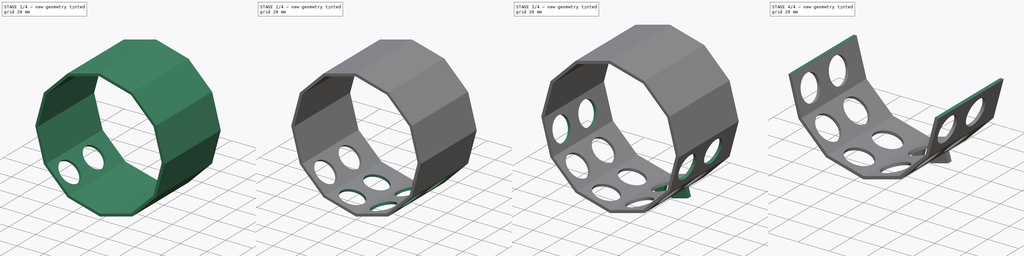
[diagram: build sequence overview — one tinted view per stage of 4, left to right]
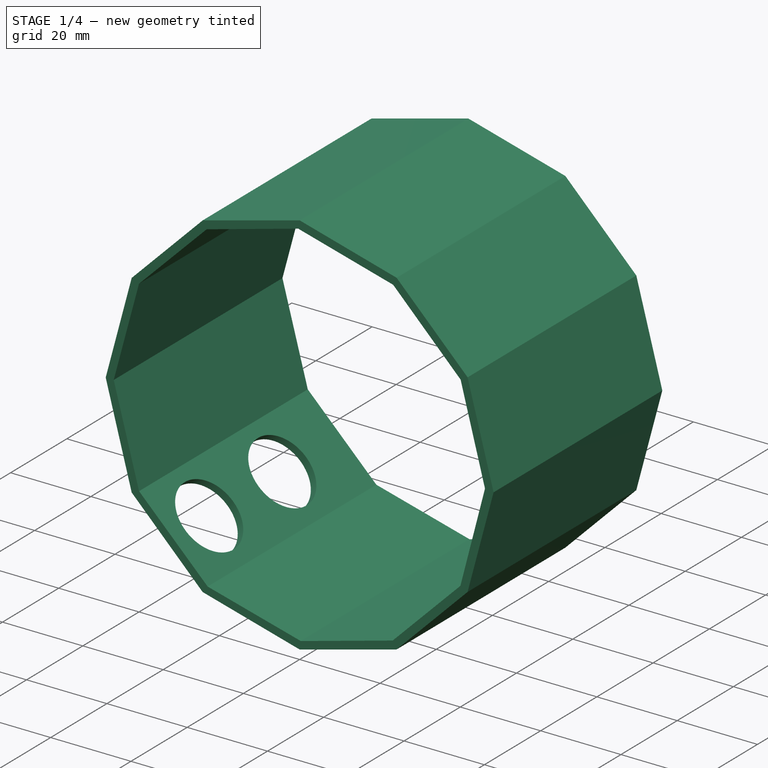
[diagram: stage 1 of 4 — iso view after this stage's code; geometry added in this stage tinted green]
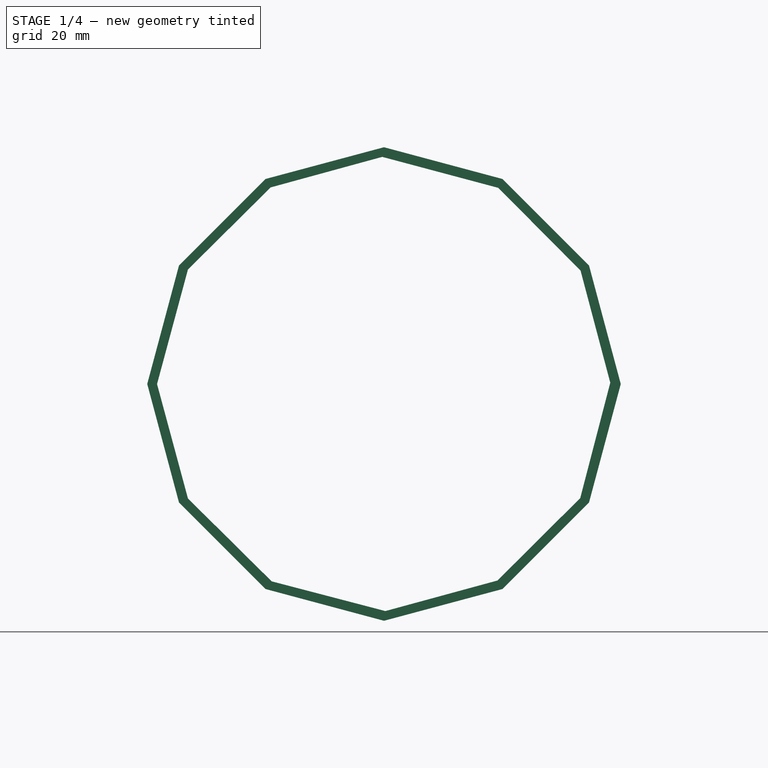
[diagram: stage 1 of 4 — front view after this stage's code; geometry added in this stage tinted green]
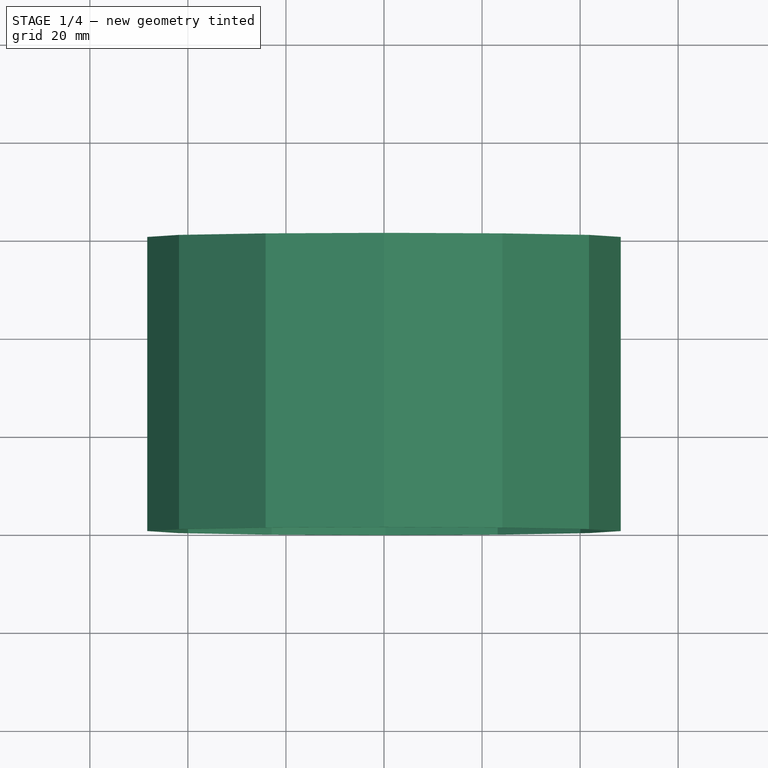
[diagram: stage 1 of 4 — top view after this stage's code; geometry added in this stage tinted green]
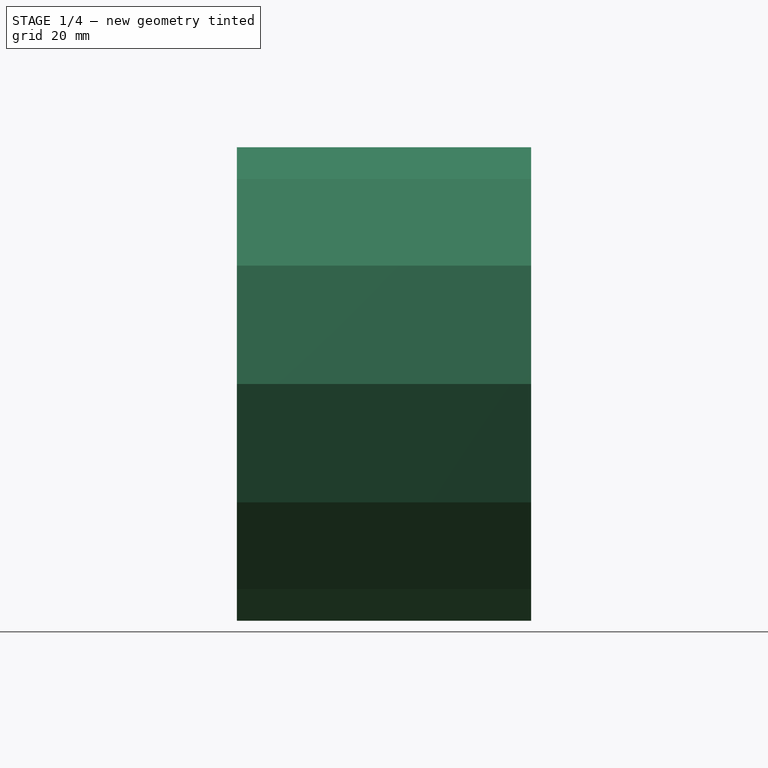
[diagram: stage 1 of 4 — right view after this stage's code; geometry added in this stage tinted green]
FCSTD DOCUMENT  (FreeCAD 0.18R4 (GitTag))
Label: collar_dani_ultrasonidos4
License: All rights reserved
LicenseURL: http://en.wikipedia.org/wiki/All_rights_reserved
objects: Sketcher::SketchObject×11, PartDesign::Pocket×8, PartDesign::Pad×3, Part::Box×1, PartDesign::Body×1, Part::Cut×1
note: 36 computed .brp shape members not serialized (recipe doc carries the construction recipe); baked Part::Feature solids carry a one-line shape summary decoded from their .brp

FEATURE [Sketcher::SketchObject] Sketch
  MapMode = 5
  Placement = pos=(0,0,0) rot=(1,0,0;1.5708rad)
  Support = -> [XZ_Plane]
  sketch-geometry (12):
    g0: LineSegment StartX=0 StartY=13.1373 StartZ=0 EndX=-24.1481 EndY=6.66682 EndZ=0
    g1: LineSegment StartX=-24.1481 StartY=6.66682 StartZ=0 EndX=-41.8258 EndY=-11.0109 EndZ=0
    g2: LineSegment StartX=-41.8258 StartY=-11.0109 StartZ=0 EndX=-48.2963 EndY=-35.159 EndZ=0
    g3: LineSegment StartX=-48.2963 StartY=-35.159 StartZ=0 EndX=-41.8258 EndY=-59.3071 EndZ=0
    g4: LineSegment StartX=-41.8258 StartY=-59.3071 StartZ=0 EndX=-24.1481 EndY=-76.9848 EndZ=0
    g5: LineSegment StartX=-24.1481 StartY=-76.9848 StartZ=0 EndX=0 EndY=-83.4553 EndZ=0
    g6: LineSegment StartX=0 StartY=-83.4553 StartZ=0 EndX=24.1481 EndY=-76.9848 EndZ=0
    g7: LineSegment StartX=24.1481 StartY=-76.9848 StartZ=0 EndX=41.8258 EndY=-59.3071 EndZ=0
    g8: LineSegment StartX=41.8258 StartY=-59.3071 StartZ=0 EndX=48.2963 EndY=-35.159 EndZ=0
    g9: LineSegment StartX=48.2963 StartY=-35.159 StartZ=0 EndX=41.8258 EndY=-11.0109 EndZ=0
    g10: LineSegment StartX=41.8258 StartY=-11.0109 StartZ=0 EndX=24.1481 EndY=6.66682 EndZ=0
    g11: LineSegment StartX=24.1481 StartY=6.66682 StartZ=0 EndX=0 EndY=13.1373 EndZ=0
  constraints (35):
    c: Coincident(g1,g2)
    c: Coincident(g2,g3)
    c: Coincident(g3,g4)
    c: Coincident(g4,g5)
    c: Coincident(g5,g6)
    c: Coincident(g6,g7)
    c: Coincident(g7,g8)
    c: Coincident(g8,g9)
    c: Coincident(g9,g10)
    c: Coincident(g10,g11)
    c: Angle(g10,g9) = 2.61799
    c: Angle(g9,g8) = 2.61799
    c: Angle(g8,g7) = 2.61799
    c: Angle(g7,g6) = 2.61799
    c: Angle(g6,g5) = 2.61799
    c: Angle(g5,g4) = 2.61799
    c: Angle(g4,g3) = 2.61799
    c: Angle(g3,g2) = 2.61799
    c: Angle(g2,g1) = 2.61799
    c: Angle(g1,g0) = 2.61799
    c: Coincident(g0,g11)
    c: Angle(g0,g11) = 2.61799
    c: Coincident(g0,g1)
    c: Distance(g0) = 25
    c: Distance(g11) = 25
    c: Distance(g10) = 25
    c: Distance(g9) = 25
    c: Distance(g8) = 25
    c: Distance(g7) = 25
    c: Distance(g6) = 25
    c: Distance(g5) = 25
    c: Distance(g4) = 25
    c: Distance(g3) = 25
    c: DistanceX(g0,g-1) = 0
    c: DistanceX(g-1,g5) = 0
FEATURE [PartDesign::Pad] Pad
  Length = 60
  Length2 = 100
  Placement = pos=(0,0,0) rot=(1,0,0;1.5708rad)
  Profile = -> Sketch
  Type = 0
FEATURE [Sketcher::SketchObject] Sketch001
  ExternalGeometry = -> [Pad]
  MapMode = 5
  Placement = pos=(0,-1e-16,0) rot=(-1,0,0;1.5708rad)
  Support = -> [Pad]
  sketch-geometry (12):
    g0: LineSegment StartX=0.278927 StartY=81.4748 StartZ=0 EndX=23.1697 EndY=75.2405 EndZ=0
    g1: LineSegment StartX=23.1697 StartY=75.2405 StartZ=0 EndX=40.0321 EndY=58.4226 EndZ=0
    g2: LineSegment StartX=40.0321 StartY=58.4226 StartZ=0 EndX=46.1551 EndY=34.8952 EndZ=0
    g3: LineSegment StartX=46.1551 StartY=34.8952 StartZ=0 EndX=40.0872 EndY=11.9995 EndZ=0
    g4: LineSegment StartX=40.0872 StartY=11.9995 StartZ=0 EndX=23.2934 EndY=-4.85868 EndZ=0
    g5: LineSegment StartX=23.2934 StartY=-4.85868 StartZ=0 EndX=-0.357735 EndY=-11.1695 EndZ=0
    g6: LineSegment StartX=-0.357735 StartY=-11.1695 StartZ=0 EndX=-23.1459 EndY=-4.93607 EndZ=0
    g7: LineSegment StartX=-23.1459 StartY=-4.93607 StartZ=0 EndX=-40.0017 EndY=11.8309 EndZ=0
    g8: LineSegment StartX=-40.0017 StartY=11.8309 StartZ=0 EndX=-46.2963 EndY=35.1693 EndZ=0
    g9: LineSegment StartX=-46.2963 StartY=35.1693 StartZ=0 EndX=-39.9901 EndY=58.5133 EndZ=0
    g10: LineSegment StartX=-39.9901 StartY=58.5133 StartZ=0 EndX=-22.91 EndY=75.4141 EndZ=0
    g11: LineSegment StartX=-22.91 StartY=75.4141 StartZ=0 EndX=0.278927 EndY=81.4748 EndZ=0
  constraints (24):
    c: Coincident(g0,g1)
    c: Coincident(g1,g2)
    c: Coincident(g2,g3)
    c: Coincident(g3,g4)
    c: Coincident(g4,g5)
    c: Coincident(g5,g6)
    c: Coincident(g6,g7)
    c: Coincident(g7,g8)
    c: Coincident(g8,g9)
    c: Coincident(g9,g10)
    c: Coincident(g10,g11)
    c: Coincident(g11,g0)
    c: Distance(g1,g-14) = 2
    c: Distance(g0,g-4) = 2
    c: Distance(g0,g-5) = 2
    c: Distance(g10,g-6) = 2
    c: Distance(g9,g-7) = 2
    c: Distance(g8,g-8) = 2
    c: Distance(g7,g-9) = 2
    c: Distance(g-10,g6) = 2
    c: Distance(g5,g-11) = 2
    c: Distance(g4,g-12) = 2
    c: Distance(g3,g-13) = 2
    c: Distance(g2,g-13) = 2
FEATURE [PartDesign::Pocket] Pocket
  BaseFeature = -> Pad
  Length = 60
  Length2 = 100
  Placement = pos=(0,0,0) rot=(1,0,0;1.5708rad)
  Profile = -> Sketch001
  Type = 0
FEATURE [Sketcher::SketchObject] Sketch002
  ExternalGeometry = -> [Pocket]
  MapMode = 5
  Placement = pos=(-50.5665,-3.34e-14,-50.5665) rot=(0.92388,0,-0.382683;3.14159rad)
  Support = -> [Pocket]
  sketch-geometry (2):
    g0: Circle CenterX=24.8612 CenterY=47 CenterZ=0 NormalX=0 NormalY=0 NormalZ=1 AngleXU=0 Radius=8.5
    g1: Circle CenterX=24.8612 CenterY=21 CenterZ=0 NormalX=0 NormalY=0 NormalZ=1 AngleXU=0 Radius=8.5
  constraints (6):
    c: Radius(g0) = 8.5
    c: Radius(g1) = 8.5
    c: DistanceY(g1,g0) = 26
    c: DistanceX(g1,g0) = 0
    c: Distance(g0,g-4) = 12.5
    c: Distance(g0,g-3) = 13
FEATURE [PartDesign::Pocket] Pocket001
  BaseFeature = -> Pocket
  Length = 5
  Length2 = 100
  Placement = pos=(0,0,0) rot=(1,0,0;1.5708rad)
  Profile = -> Sketch002
  Type = 0
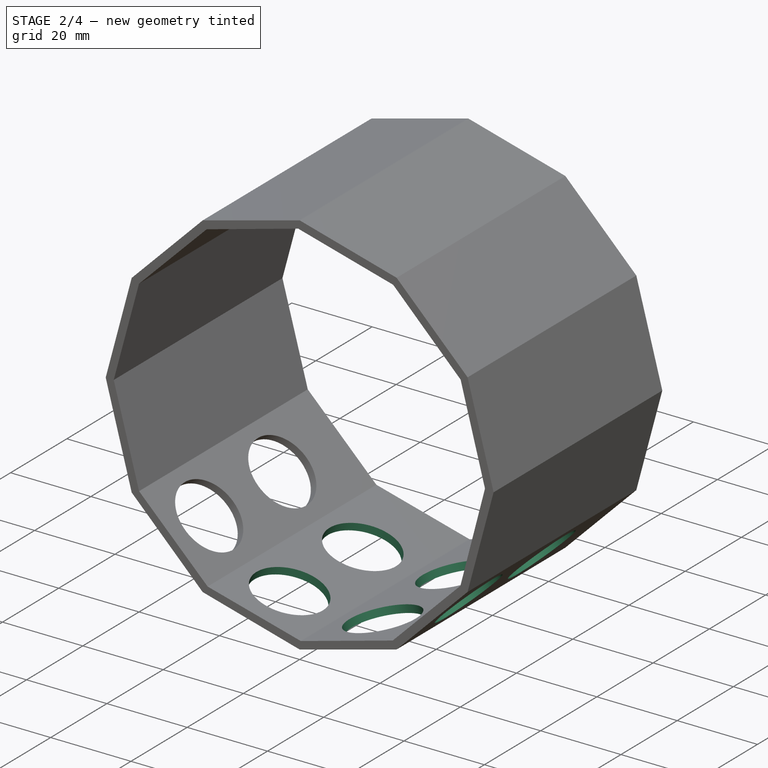
[diagram: stage 2 of 4 — iso view after this stage's code; geometry added in this stage tinted green]
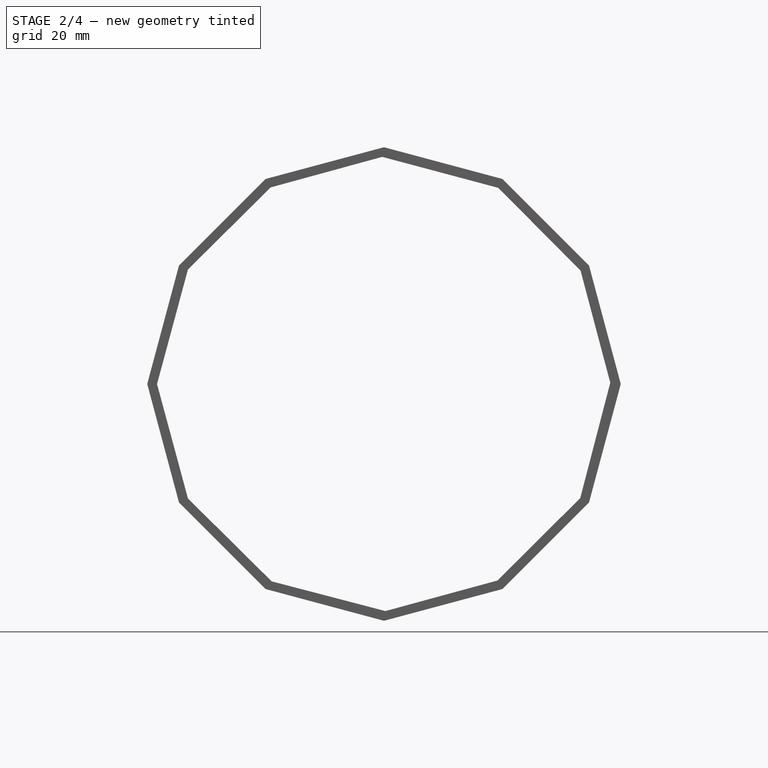
[diagram: stage 2 of 4 — front view after this stage's code; geometry added in this stage tinted green]
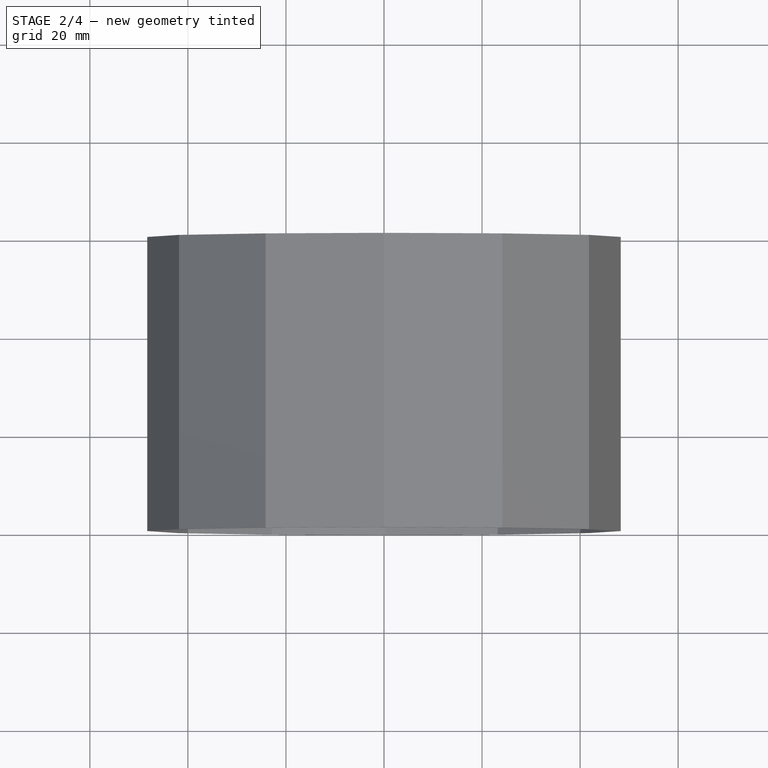
[diagram: stage 2 of 4 — top view after this stage's code; geometry added in this stage tinted green]
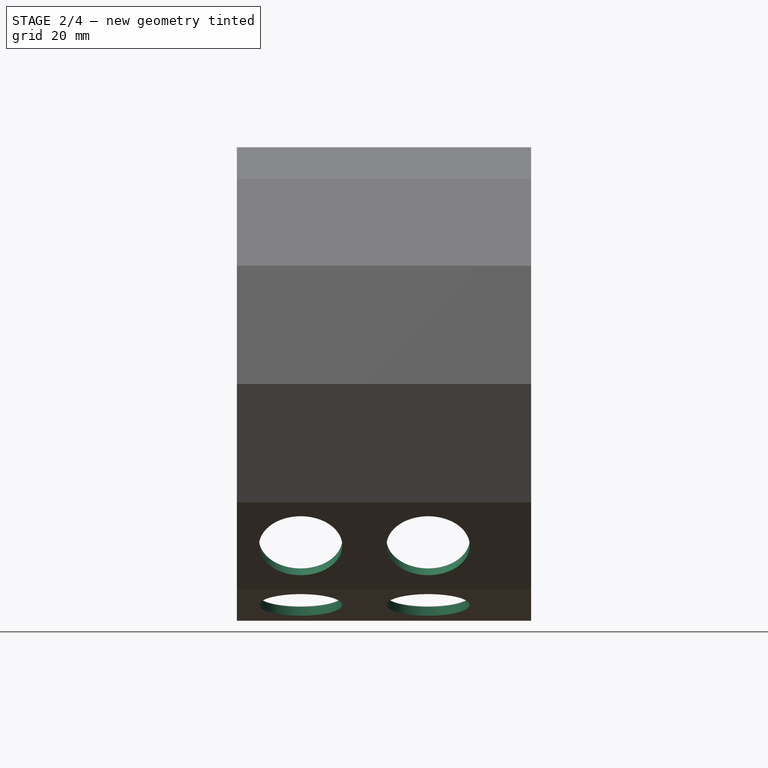
[diagram: stage 2 of 4 — right view after this stage's code; geometry added in this stage tinted green]
FEATURE [Sketcher::SketchObject] Sketch003
  ExternalGeometry = -> [Pocket001]
  MapMode = 5
  Placement = pos=(-20.8638,-6.06e-14,-77.8648) rot=(0.991445,0,-0.130526;3.14159rad)
  Support = -> [Pocket001]
  sketch-geometry (2):
    g0: Circle CenterX=9.09982 CenterY=47 CenterZ=0 NormalX=0 NormalY=0 NormalZ=1 AngleXU=0 Radius=8.5
    g1: Circle CenterX=9.09982 CenterY=21 CenterZ=0 NormalX=0 NormalY=0 NormalZ=1 AngleXU=0 Radius=8.5
  constraints (6):
    c: Radius(g0) = 8.5
    c: Radius(g1) = 8.5
    c: DistanceY(g1,g0) = 26
    c: DistanceX(g0,g1) = 0
    c: Distance(g0,g-3) = 13
    c: Distance(g0,g-4) = 12.5
FEATURE [PartDesign::Pocket] Pocket002
  BaseFeature = -> Pocket001
  Length = 5
  Length2 = 100
  Placement = pos=(0,0,0) rot=(1,0,0;1.5708rad)
  Profile = -> Sketch003
  Type = 0
FEATURE [Sketcher::SketchObject] Sketch004
  ExternalGeometry = -> [Pocket002]
  MapMode = 5
  Placement = pos=(20.8638,-6.92e-14,-77.8648) rot=(0.991445,0,0.130526;3.14159rad)
  Support = -> [Pocket002]
  sketch-geometry (2):
    g0: Circle CenterX=-9.09982 CenterY=47 CenterZ=0 NormalX=0 NormalY=0 NormalZ=1 AngleXU=0 Radius=8.5
    g1: Circle CenterX=-9.09982 CenterY=21 CenterZ=0 NormalX=0 NormalY=0 NormalZ=1 AngleXU=0 Radius=8.5
  constraints (6):
    c: Radius(g0) = 8.5
    c: Radius(g1) = 8.5
    c: DistanceY(g1,g0) = 26
    c: DistanceX(g0,g1) = 0
    c: Distance(g0,g-3) = 13
    c: Distance(g0,g-4) = 12.5
FEATURE [PartDesign::Pocket] Pocket003
  BaseFeature = -> Pocket002
  Length = 5
  Length2 = 100
  Placement = pos=(0,0,0) rot=(1,0,0;1.5708rad)
  Profile = -> Sketch004
  Type = 0
FEATURE [Sketcher::SketchObject] Sketch005
  ExternalGeometry = -> [Pocket003]
  MapMode = 5
  Placement = pos=(50.5665,-5.02e-14,-50.5665) rot=(0.92388,0,0.382683;3.14159rad)
  Support = -> [Pocket003]
  sketch-geometry (2):
    g0: Circle CenterX=-24.8612 CenterY=47 CenterZ=0 NormalX=0 NormalY=0 NormalZ=1 AngleXU=0 Radius=8.5
    g1: Circle CenterX=-24.8612 CenterY=21 CenterZ=0 NormalX=0 NormalY=0 NormalZ=1 AngleXU=0 Radius=8.5
  constraints (6):
    c: Radius(g0) = 8.5
    c: Radius(g1) = 8.5
    c: DistanceY(g1,g0) = 26
    c: DistanceX(g0,g1) = 0
    c: Distance(g0,g-4) = 12.5
    c: Distance(g0,g-3) = 13
FEATURE [PartDesign::Pocket] Pocket004
  BaseFeature = -> Pocket003
  Length = 5
  Length2 = 100
  Placement = pos=(0,0,0) rot=(1,0,0;1.5708rad)
  Profile = -> Sketch005
  Type = 0
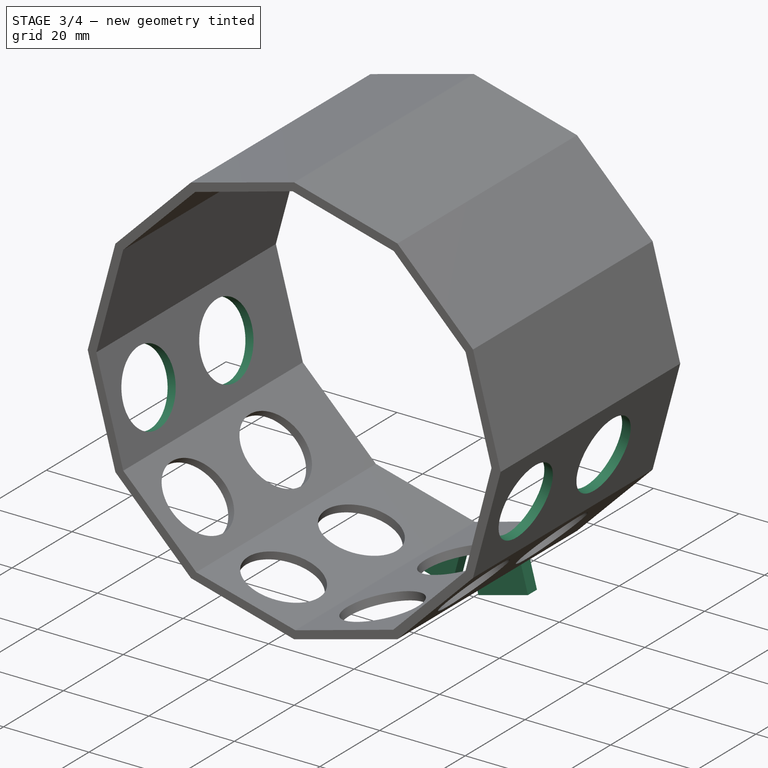
[diagram: stage 3 of 4 — iso view after this stage's code; geometry added in this stage tinted green]
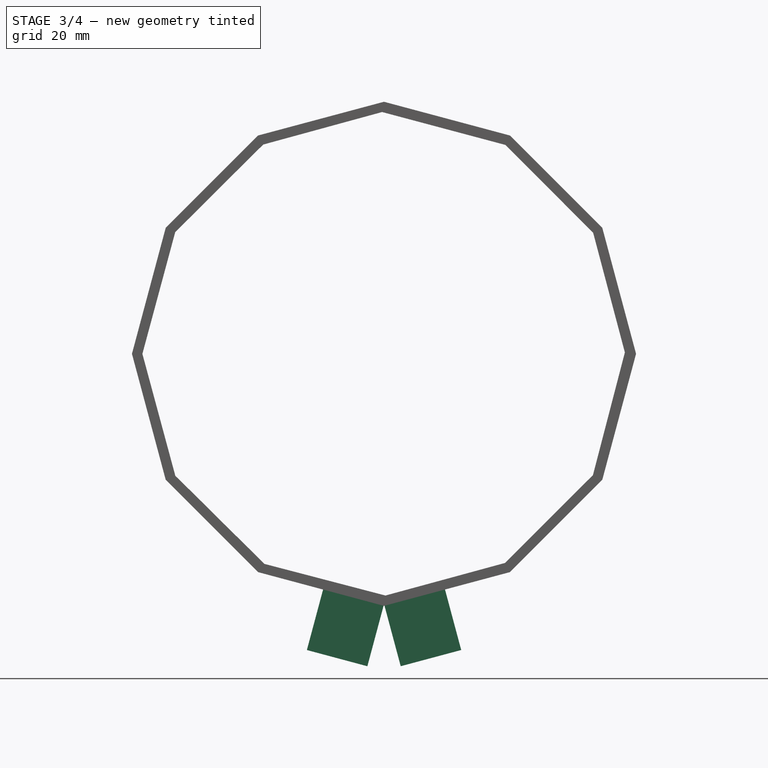
[diagram: stage 3 of 4 — front view after this stage's code; geometry added in this stage tinted green]
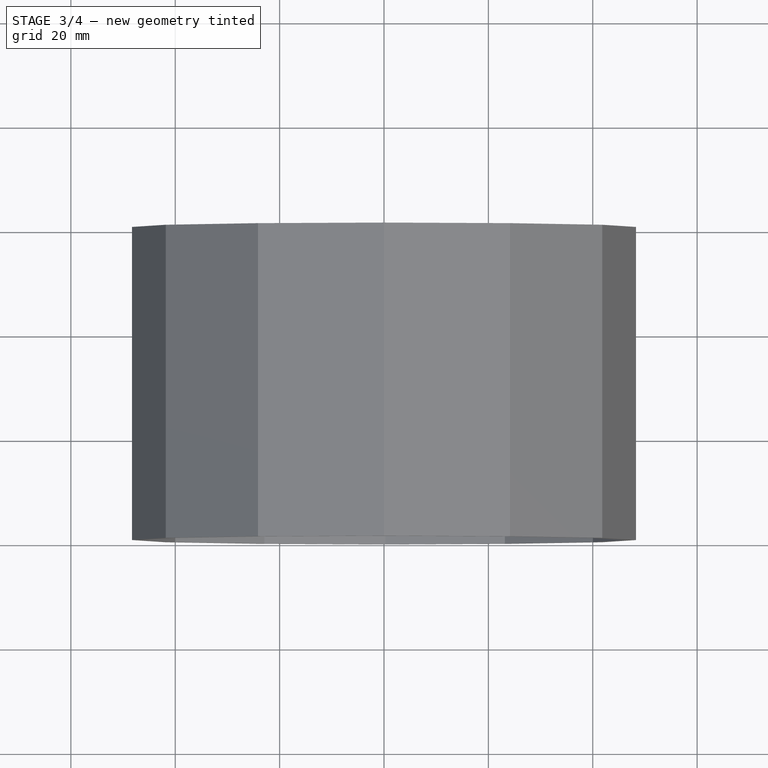
[diagram: stage 3 of 4 — top view after this stage's code; geometry added in this stage tinted green]
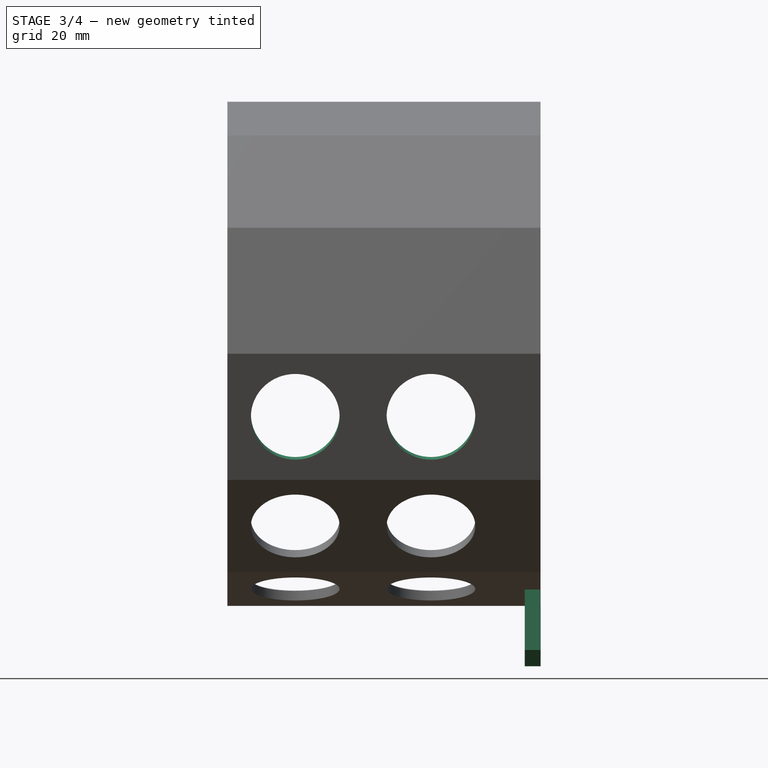
[diagram: stage 3 of 4 — right view after this stage's code; geometry added in this stage tinted green]
FEATURE [Sketcher::SketchObject] Sketch006
  ExternalGeometry = -> [Pocket004]
  MapMode = 5
  Placement = pos=(53.8508,-1.57e-14,-14.4293) rot=(0.793353,0,0.608761;3.14159rad)
  Support = -> [Pocket004]
  sketch-geometry (2):
    g0: Circle CenterX=-33.961 CenterY=47 CenterZ=0 NormalX=0 NormalY=0 NormalZ=1 AngleXU=0 Radius=8.5
    g1: Circle CenterX=-33.961 CenterY=21 CenterZ=0 NormalX=0 NormalY=0 NormalZ=1 AngleXU=0 Radius=8.5
  constraints (6):
    c: Radius(g0) = 8.5
    c: Radius(g1) = 8.5
    c: Distance(g0,g1) = 26
    c: Distance(g0,g-3) = 13
    c: Distance(g1,g-4) = 12.5
    c: DistanceX(g0,g1) = 0
FEATURE [PartDesign::Pocket] Pocket005
  BaseFeature = -> Pocket004
  Length = 5
  Length2 = 100
  Placement = pos=(0,0,0) rot=(1,0,0;1.5708rad)
  Profile = -> Sketch006
  Type = 0
FEATURE [Sketcher::SketchObject] Sketch007
  ExternalGeometry = -> [Pocket005]
  MapMode = 5
  Placement = pos=(-53.8508,-1.73e-14,-14.4293) rot=(0.793353,0,-0.608761;3.14159rad)
  Support = -> [Pocket005]
  sketch-geometry (2):
    g0: Circle CenterX=33.961 CenterY=47 CenterZ=0 NormalX=0 NormalY=0 NormalZ=1 AngleXU=0 Radius=8.5
    g1: Circle CenterX=33.961 CenterY=21 CenterZ=0 NormalX=0 NormalY=0 NormalZ=1 AngleXU=0 Radius=8.5
  constraints (6):
    c: Radius(g0) = 8.5
    c: Radius(g1) = 8.5
    c: Distance(g0,g-4) = 12.5
    c: Distance(g1,g0) = 26
    c: DistanceX(g1,g0) = 0
    c: Distance(g0,g-3) = 13
FEATURE [PartDesign::Pocket] Pocket006
  BaseFeature = -> Pocket005
  Length = 5
  Length2 = 100
  Placement = pos=(0,0,0) rot=(1,0,0;1.5708rad)
  Profile = -> Sketch007
  Type = 0
FEATURE [Sketcher::SketchObject] Sketch008
  MapMode = 5
  Placement = pos=(20.8638,-1.038e-13,-77.8648) rot=(0.991445,0,0.130526;3.14159rad)
  Support = -> [Pocket006]
  sketch-geometry (4):
    g0: LineSegment StartX=-21.4993 StartY=3.0258 StartZ=0 EndX=-9.49925 EndY=3.0258 EndZ=0
    g1: LineSegment StartX=-9.49925 StartY=3.0258 StartZ=0 EndX=-9.49925 EndY=0.0258008 EndZ=0
    g2: LineSegment StartX=-9.49925 StartY=0.0258008 StartZ=0 EndX=-21.4993 EndY=0.0258008 EndZ=0
    g3: LineSegment StartX=-21.4993 StartY=0.0258008 StartZ=0 EndX=-21.4993 EndY=3.0258 EndZ=0
  constraints (10):
    c: Coincident(g0,g1)
    c: Coincident(g1,g2)
    c: Coincident(g2,g3)
    c: Coincident(g3,g0)
    c: Horizontal(g0)
    c: Horizontal(g2)
    c: Vertical(g1)
    c: Vertical(g3)
    c: DistanceX(g2,g2) = 12
    c: DistanceY(g1,g1) = 3
FEATURE [PartDesign::Pad] Pad001
  BaseFeature = -> Pocket006
  Length = 12
  Length2 = 100
  Placement = pos=(0,0,0) rot=(1,0,0;1.5708rad)
  Profile = -> Sketch008
  Type = 0
FEATURE [Sketcher::SketchObject] Sketch009
  MapMode = 5
  Placement = pos=(-20.8638,-1.125e-13,-77.8648) rot=(0.991445,0,-0.130526;3.14159rad)
  Support = -> [Pad001]
  sketch-geometry (4):
    g0: LineSegment StartX=9.51668 StartY=2.9931 StartZ=0 EndX=21.5167 EndY=2.9931 EndZ=0
    g1: LineSegment StartX=21.5167 StartY=2.9931 StartZ=0 EndX=21.5167 EndY=-0.00689949 EndZ=0
    g2: LineSegment StartX=21.5167 StartY=-0.00689949 StartZ=0 EndX=9.51668 EndY=-0.00689949 EndZ=0
    g3: LineSegment StartX=9.51668 StartY=-0.00689949 StartZ=0 EndX=9.51668 EndY=2.9931 EndZ=0
  constraints (10):
    c: Coincident(g0,g1)
    c: Coincident(g1,g2)
    c: Coincident(g2,g3)
    c: Coincident(g3,g0)
    c: Horizontal(g0)
    c: Horizontal(g2)
    c: Vertical(g1)
    c: Vertical(g3)
    c: DistanceY(g1,g1) = 3
    c: DistanceX(g2,g2) = 12
FEATURE [PartDesign::Pad] Pad002
  BaseFeature = -> Pad001
  Length = 12
  Length2 = 100
  Placement = pos=(0,0,0) rot=(1,0,0;1.5708rad)
  Profile = -> Sketch009
  Type = 0
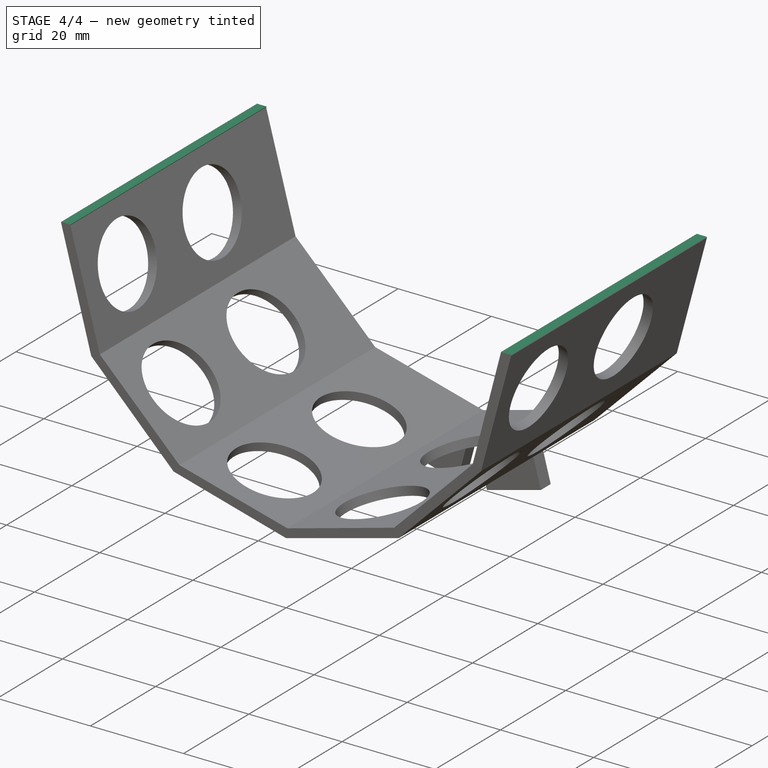
[diagram: stage 4 of 4 — iso view after this stage's code; geometry added in this stage tinted green]
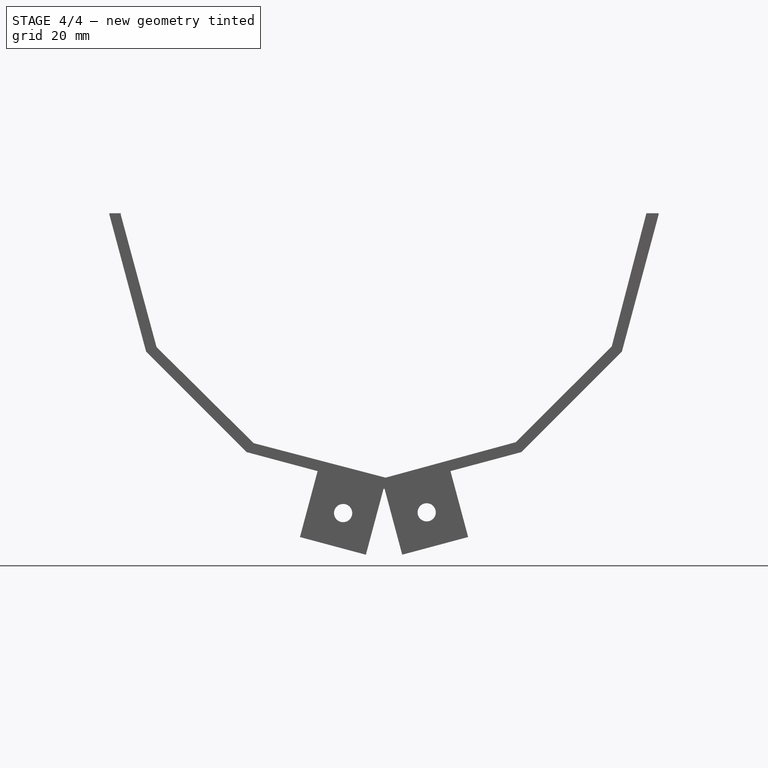
[diagram: stage 4 of 4 — front view after this stage's code; geometry added in this stage tinted green]
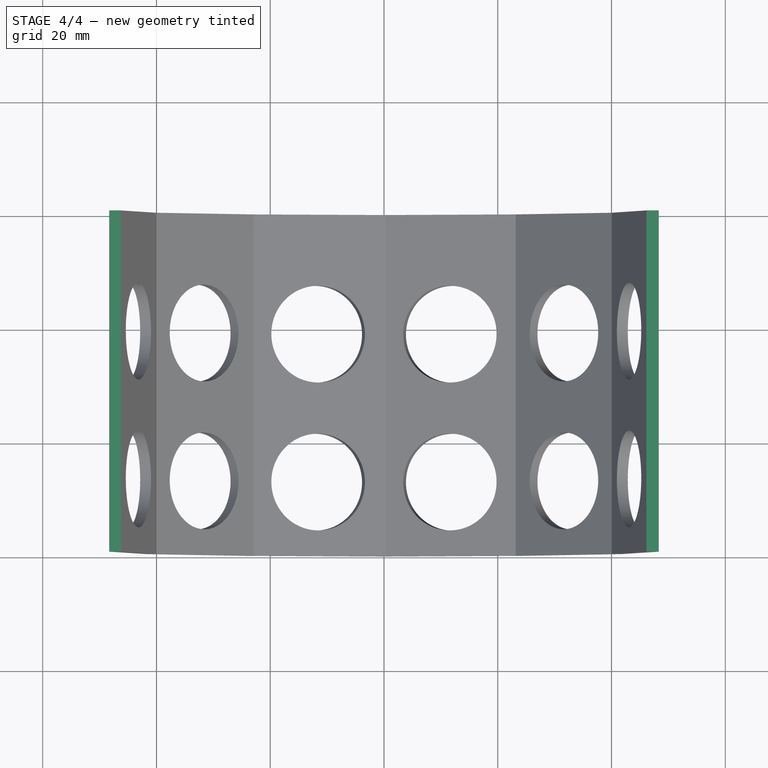
[diagram: stage 4 of 4 — top view after this stage's code; geometry added in this stage tinted green]
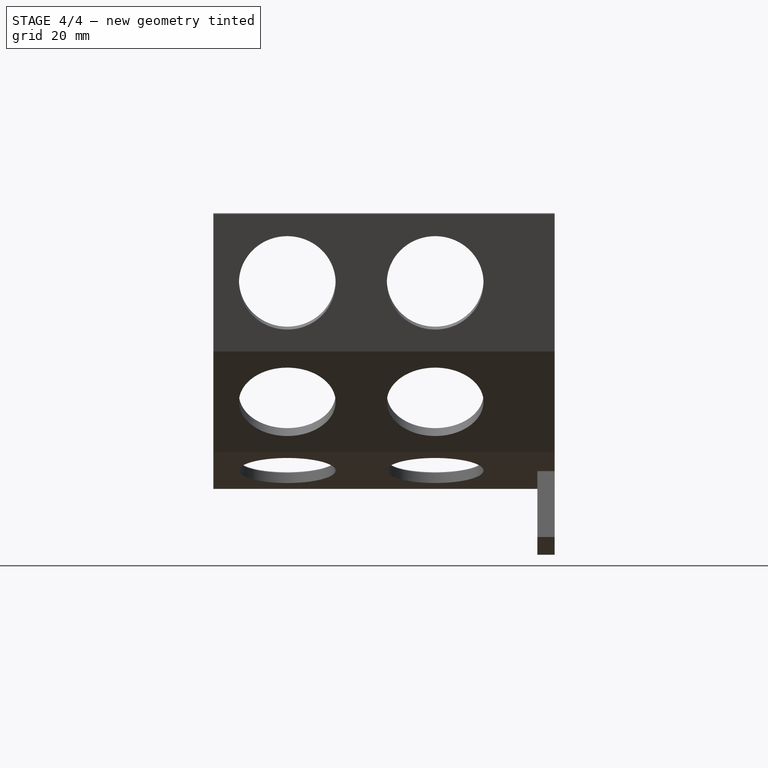
[diagram: stage 4 of 4 — right view after this stage's code; geometry added in this stage tinted green]
FEATURE [Part::Box] Box  label="Cubo"
  AttacherType = Attacher::AttachEngine3D
  Height = 57
  Length = 100
  Placement = pos=(-50,-62,-35) rot=(0,0,1;0rad)
  Width = 63
FEATURE [Sketcher::SketchObject] Sketch010
  MapMode = 5
  Placement = pos=(0,-3.0258,4.7e-15) rot=(1,0,0;1.5708rad)
  Support = -> [Pad002]
  sketch-geometry (2):
    g0: Circle CenterX=7.5046 CenterY=-87.572 CenterZ=0 NormalX=0 NormalY=0 NormalZ=1 AngleXU=0 Radius=1.6
    g1: Circle CenterX=-7.18705 CenterY=-87.703 CenterZ=0 NormalX=0 NormalY=0 NormalZ=1 AngleXU=0 Radius=1.6
  constraints (2):
    c: Radius(g0) = 1.6
    c: Radius(g1) = 1.6
FEATURE [PartDesign::Pocket] Pocket007
  BaseFeature = -> Pad002
  Length = 5
  Length2 = 100
  Placement = pos=(0,0,0) rot=(1,0,0;1.5708rad)
  Profile = -> Sketch010
  Type = 0
FEATURE [PartDesign::Body] Body
  Group = -> [Sketch,Pad,Sketch001,Pocket,Sketch002,Pocket001,Sketch003,Pocket002,Sketch004,Pocket003,Sketch005,Pocket004,Sketch006,Pocket005,Sketch007,Pocket006,Sketch008,Pad001,Sketch009,Pad002,Sketch010,Pocket007]
  Origin = -> Origin
  Tip = -> Pocket007
FEATURE [Part::Cut] Cut
  Base = -> Body
  Tool = -> Box
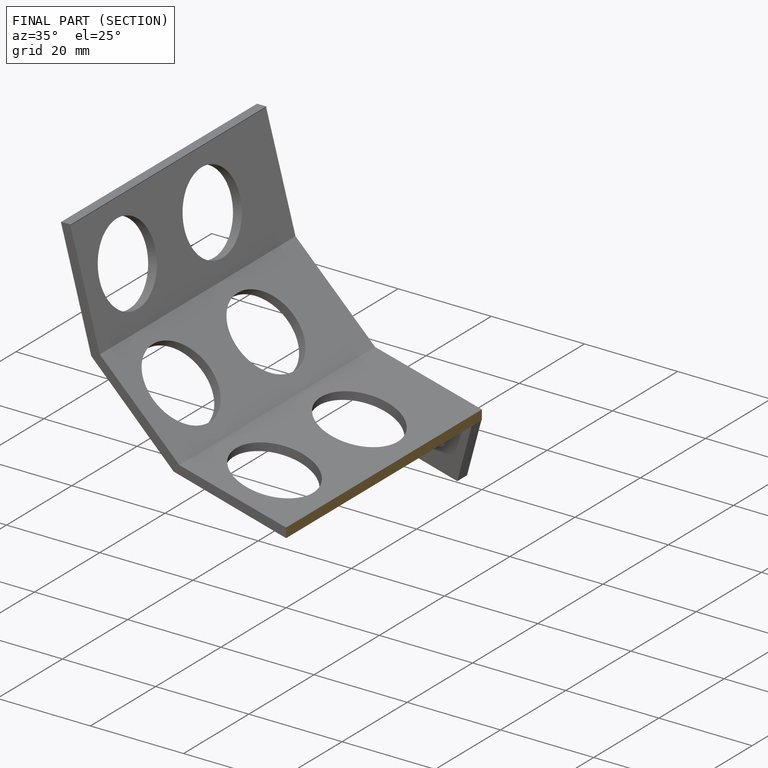
[diagram: finished part — half-section view (interior)]
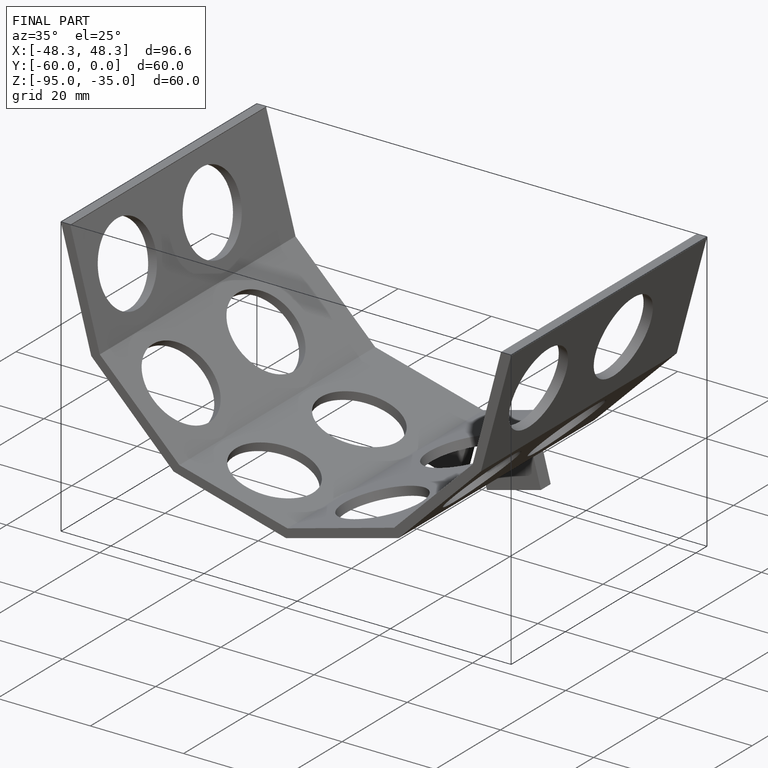
[diagram: finished part — iso view with bounding-box wireframe]
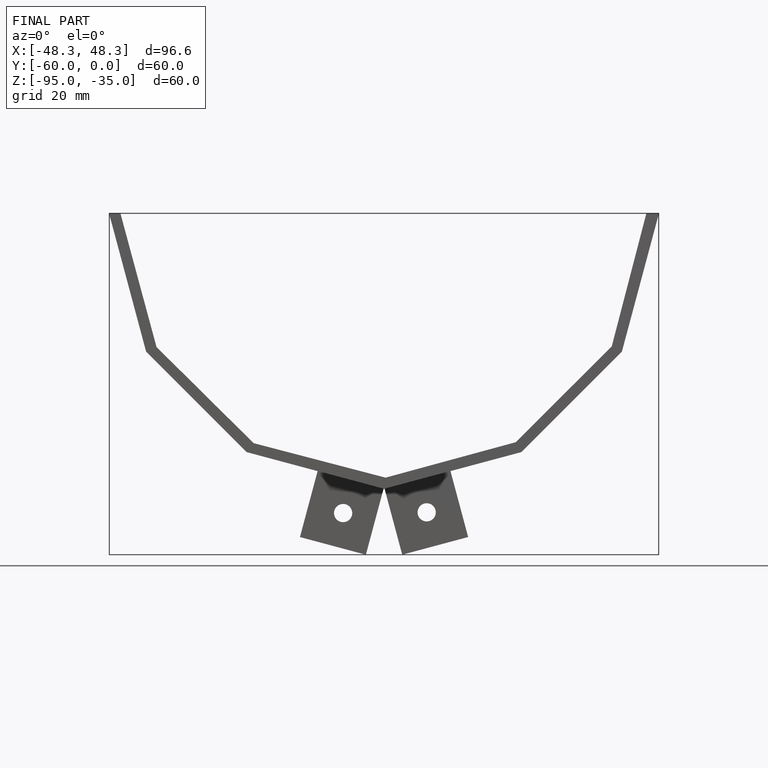
[diagram: finished part — front view with bounding-box wireframe]
